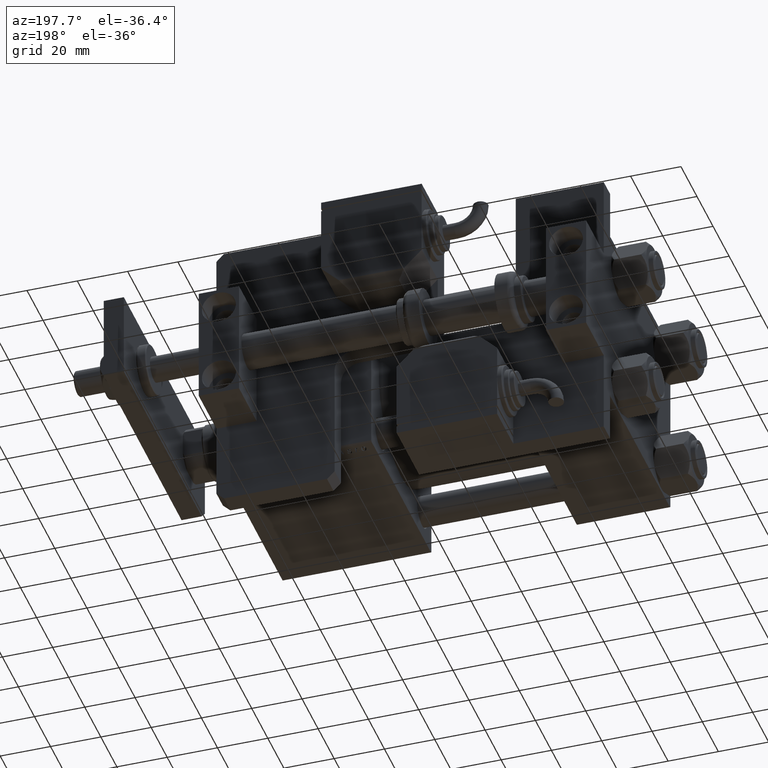
[diagram: clean part render]
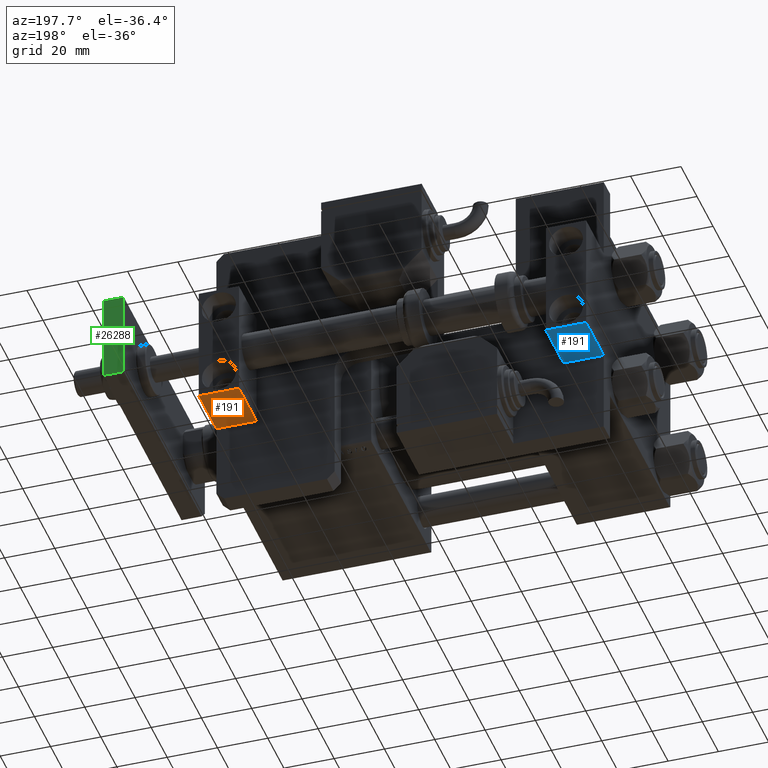
[diagram: same view with three faces highlighted in distinct colors, each labeled with its STEP entity id]
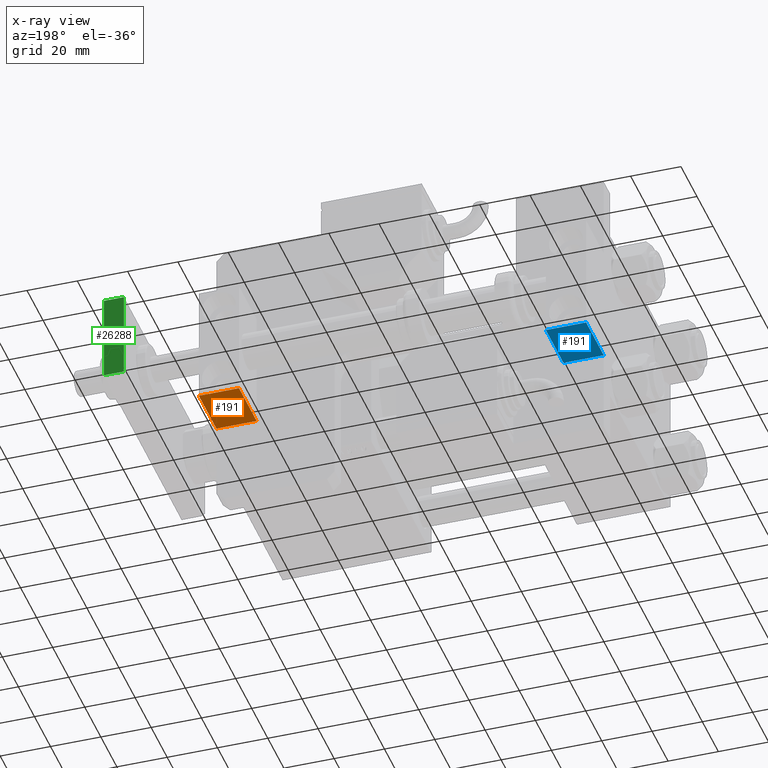
[diagram: x-ray of the same camera — body ghosted, the three highlighted faces saturated]
A machine part, auxiliary view with three faces highlighted in distinct colors.
The next image is the same camera in x-ray (body ghosted, the three faces saturated) — at least one of them is partly hidden behind the body in this view.
Their STEP definitions:

[orange] entity #191 — the highlighted planar face has unit normal (-0, 0, -1).
#191 = ADVANCED_FACE ( 'NONE', ( #32883 ), #40802, .T. ) ;
#1950 = LINE ( 'NONE', #15247, #36551 ) ;
#2941 = CARTESIAN_POINT ( 'NONE',  ( 23.99999999999999645, 10.99999999999999289, -16.00000000000000000 ) ) ;
#3728 = DIRECTION ( 'NONE',  ( -1.577021341797098053E-16, 1.000000000000000000, -0.000000000000000000 ) ) ;
#4454 = VECTOR ( 'NONE', #34335, 1000.000000000000000 ) ;
#6862 = DIRECTION ( 'NONE',  ( 1.000000000000000000, 1.577021341797098053E-16, -0.000000000000000000 ) ) ;
#7480 = LINE ( 'NONE', #2941, #4454 ) ;
#10231 = DIRECTION ( 'NONE',  ( 0.000000000000000000, 0.000000000000000000, 1.000000000000000000 ) ) ;
#14567 = EDGE_CURVE ( 'NONE', #14608, #40567, #7480, .T. ) ;
#14608 = VERTEX_POINT ( 'NONE', #47026 ) ;
#15247 = CARTESIAN_POINT ( 'NONE',  ( 23.99999999999999645, 10.99999999999999289, -16.00000000000000000 ) ) ;
#15258 = ORIENTED_EDGE ( 'NONE', *, *, #46166, .F. ) ;
#15304 = LINE ( 'NONE', #24093, #24749 ) ;
#16017 = ORIENTED_EDGE ( 'NONE', *, *, #23519, .F. ) ;
#18371 = ORIENTED_EDGE ( 'NONE', *, *, #42146, .T. ) ;
#19800 = CARTESIAN_POINT ( 'NONE',  ( 24.00000000000000000, -11.00000000000000000, 0.000000000000000000 ) ) ;
#20015 = ORIENTED_EDGE ( 'NONE', *, *, #14567, .T. ) ;
#21990 = CARTESIAN_POINT ( 'NONE',  ( 23.99999999999999645, 10.99999999999999289, 0.000000000000000000 ) ) ;
#23519 = EDGE_CURVE ( 'NONE', #48045, #33339, #15304, .T. ) ;
#24093 = CARTESIAN_POINT ( 'NONE',  ( 24.00000000000000000, -11.00000000000000000, -16.00000000000000000 ) ) ;
#24184 = AXIS2_PLACEMENT_3D ( 'NONE', #28099, #6862, #45303 ) ;
#24749 = VECTOR ( 'NONE', #10231, 1000.000000000000000 ) ;
#28099 = CARTESIAN_POINT ( 'NONE',  ( 23.99999999999999645, 10.99999999999999289, -16.00000000000000000 ) ) ;
#32883 = FACE_OUTER_BOUND ( 'NONE', #46811, .T. ) ;
#33339 = VERTEX_POINT ( 'NONE', #19800 ) ;
#33445 = CARTESIAN_POINT ( 'NONE',  ( 23.99999999999999645, 10.99999999999999289, 0.000000000000000000 ) ) ;
#34004 = VECTOR ( 'NONE', #3728, 1000.000000000000000 ) ;
#34335 = DIRECTION ( 'NONE',  ( 0.000000000000000000, 0.000000000000000000, 1.000000000000000000 ) ) ;
#36551 = VECTOR ( 'NONE', #36746, 1000.000000000000000 ) ;
#36746 = DIRECTION ( 'NONE',  ( -1.577021341797098053E-16, 1.000000000000000000, -0.000000000000000000 ) ) ;
#37957 = LINE ( 'NONE', #33445, #34004 ) ;
#40567 = VERTEX_POINT ( 'NONE', #21990 ) ;
#40802 = PLANE ( 'NONE',  #24184 ) ;
#42146 = EDGE_CURVE ( 'NONE', #48045, #14608, #1950, .T. ) ;
#45303 = DIRECTION ( 'NONE',  ( -1.577021341797098053E-16, 1.000000000000000000, 0.000000000000000000 ) ) ;
#46166 = EDGE_CURVE ( 'NONE', #33339, #40567, #37957, .T. ) ;
#46811 = EDGE_LOOP ( 'NONE', ( #15258, #16017, #18371, #20015 ) ) ;
#47026 = CARTESIAN_POINT ( 'NONE',  ( 23.99999999999999645, 10.99999999999999289, -16.00000000000000000 ) ) ;
#47684 = CARTESIAN_POINT ( 'NONE',  ( 24.00000000000000000, -11.00000000000000000, -16.00000000000000000 ) ) ;
#48045 = VERTEX_POINT ( 'NONE', #47684 ) ;

[blue] entity #191 — the highlighted planar face has unit normal (-0, 0, -1).
#191 = ADVANCED_FACE ( 'NONE', ( #32883 ), #40802, .T. ) ;
#1950 = LINE ( 'NONE', #15247, #36551 ) ;
#2941 = CARTESIAN_POINT ( 'NONE',  ( 23.99999999999999645, 10.99999999999999289, -16.00000000000000000 ) ) ;
#3728 = DIRECTION ( 'NONE',  ( -1.577021341797098053E-16, 1.000000000000000000, -0.000000000000000000 ) ) ;
#4454 = VECTOR ( 'NONE', #34335, 1000.000000000000000 ) ;
#6862 = DIRECTION ( 'NONE',  ( 1.000000000000000000, 1.577021341797098053E-16, -0.000000000000000000 ) ) ;
#7480 = LINE ( 'NONE', #2941, #4454 ) ;
#10231 = DIRECTION ( 'NONE',  ( 0.000000000000000000, 0.000000000000000000, 1.000000000000000000 ) ) ;
#14567 = EDGE_CURVE ( 'NONE', #14608, #40567, #7480, .T. ) ;
#14608 = VERTEX_POINT ( 'NONE', #47026 ) ;
#15247 = CARTESIAN_POINT ( 'NONE',  ( 23.99999999999999645, 10.99999999999999289, -16.00000000000000000 ) ) ;
#15258 = ORIENTED_EDGE ( 'NONE', *, *, #46166, .F. ) ;
#15304 = LINE ( 'NONE', #24093, #24749 ) ;
#16017 = ORIENTED_EDGE ( 'NONE', *, *, #23519, .F. ) ;
#18371 = ORIENTED_EDGE ( 'NONE', *, *, #42146, .T. ) ;
#19800 = CARTESIAN_POINT ( 'NONE',  ( 24.00000000000000000, -11.00000000000000000, 0.000000000000000000 ) ) ;
#20015 = ORIENTED_EDGE ( 'NONE', *, *, #14567, .T. ) ;
#21990 = CARTESIAN_POINT ( 'NONE',  ( 23.99999999999999645, 10.99999999999999289, 0.000000000000000000 ) ) ;
#23519 = EDGE_CURVE ( 'NONE', #48045, #33339, #15304, .T. ) ;
#24093 = CARTESIAN_POINT ( 'NONE',  ( 24.00000000000000000, -11.00000000000000000, -16.00000000000000000 ) ) ;
#24184 = AXIS2_PLACEMENT_3D ( 'NONE', #28099, #6862, #45303 ) ;
#24749 = VECTOR ( 'NONE', #10231, 1000.000000000000000 ) ;
#28099 = CARTESIAN_POINT ( 'NONE',  ( 23.99999999999999645, 10.99999999999999289, -16.00000000000000000 ) ) ;
#32883 = FACE_OUTER_BOUND ( 'NONE', #46811, .T. ) ;
#33339 = VERTEX_POINT ( 'NONE', #19800 ) ;
#33445 = CARTESIAN_POINT ( 'NONE',  ( 23.99999999999999645, 10.99999999999999289, 0.000000000000000000 ) ) ;
#34004 = VECTOR ( 'NONE', #3728, 1000.000000000000000 ) ;
#34335 = DIRECTION ( 'NONE',  ( 0.000000000000000000, 0.000000000000000000, 1.000000000000000000 ) ) ;
#36551 = VECTOR ( 'NONE', #36746, 1000.000000000000000 ) ;
#36746 = DIRECTION ( 'NONE',  ( -1.577021341797098053E-16, 1.000000000000000000, -0.000000000000000000 ) ) ;
#37957 = LINE ( 'NONE', #33445, #34004 ) ;
#40567 = VERTEX_POINT ( 'NONE', #21990 ) ;
#40802 = PLANE ( 'NONE',  #24184 ) ;
#42146 = EDGE_CURVE ( 'NONE', #48045, #14608, #1950, .T. ) ;
#45303 = DIRECTION ( 'NONE',  ( -1.577021341797098053E-16, 1.000000000000000000, 0.000000000000000000 ) ) ;
#46166 = EDGE_CURVE ( 'NONE', #33339, #40567, #37957, .T. ) ;
#46811 = EDGE_LOOP ( 'NONE', ( #15258, #16017, #18371, #20015 ) ) ;
#47026 = CARTESIAN_POINT ( 'NONE',  ( 23.99999999999999645, 10.99999999999999289, -16.00000000000000000 ) ) ;
#47684 = CARTESIAN_POINT ( 'NONE',  ( 24.00000000000000000, -11.00000000000000000, -16.00000000000000000 ) ) ;
#48045 = VERTEX_POINT ( 'NONE', #47684 ) ;

[green] entity #26288 — the highlighted planar face has unit normal (0, -1, -0).
#2252 = LINE ( 'NONE', #11027, #3560 ) ;
#3560 = VECTOR ( 'NONE', #19523, 1000.000000000000000 ) ;
#7509 = ORIENTED_EDGE ( 'NONE', *, *, #13084, .F. ) ;
#8261 = EDGE_CURVE ( 'NONE', #47397, #29482, #2252, .T. ) ;
#9163 = PLANE ( 'NONE',  #39077 ) ;
#9445 = DIRECTION ( 'NONE',  ( 0.000000000000000000, -1.000000000000000000, 0.000000000000000000 ) ) ;
#11027 = CARTESIAN_POINT ( 'NONE',  ( 17.50000000000000000, 101.0000000000000000, 8.000000000000000000 ) ) ;
#13039 = EDGE_CURVE ( 'NONE', #29482, #15879, #49662, .T. ) ;
#13084 = EDGE_CURVE ( 'NONE', #39381, #15879, #15753, .T. ) ;
#14781 = DIRECTION ( 'NONE',  ( -1.000000000000000000, 0.000000000000000000, 0.000000000000000000 ) ) ;
#15753 = LINE ( 'NONE', #50223, #45007 ) ;
#15879 = VERTEX_POINT ( 'NONE', #44668 ) ;
#19523 = DIRECTION ( 'NONE',  ( -0.000000000000000000, -0.000000000000000000, -1.000000000000000000 ) ) ;
#19715 = CARTESIAN_POINT ( 'NONE',  ( 17.50000000000000000, 101.0000000000000000, 0.000000000000000000 ) ) ;
#22603 = CARTESIAN_POINT ( 'NONE',  ( -17.50000000000000355, 101.0000000000000000, 8.000000000000000000 ) ) ;
#24815 = DIRECTION ( 'NONE',  ( -0.000000000000000000, -0.000000000000000000, -1.000000000000000000 ) ) ;
#26288 = ADVANCED_FACE ( 'NONE', ( #40540 ), #9163, .F. ) ;
#26716 = DIRECTION ( 'NONE',  ( 0.000000000000000000, -0.000000000000000000, -1.000000000000000000 ) ) ;
#28417 = CARTESIAN_POINT ( 'NONE',  ( 17.50000000000000000, 101.0000000000000000, 0.000000000000000000 ) ) ;
#29482 = VERTEX_POINT ( 'NONE', #28417 ) ;
#29699 = VECTOR ( 'NONE', #14781, 1000.000000000000000 ) ;
#30948 = CARTESIAN_POINT ( 'NONE',  ( 17.50000000000000000, 101.0000000000000000, 8.000000000000000000 ) ) ;
#32880 = CARTESIAN_POINT ( 'NONE',  ( 17.50000000000000000, 101.0000000000000000, 8.000000000000000000 ) ) ;
#39077 = AXIS2_PLACEMENT_3D ( 'NONE', #30948, #9445, #26716 ) ;
#39381 = VERTEX_POINT ( 'NONE', #22603 ) ;
#40474 = CARTESIAN_POINT ( 'NONE',  ( 17.50000000000000000, 101.0000000000000000, 8.000000000000000000 ) ) ;
#40540 = FACE_OUTER_BOUND ( 'NONE', #42598, .T. ) ;
#42598 = EDGE_LOOP ( 'NONE', ( #47908, #7509, #43995, #51924 ) ) ;
#43995 = ORIENTED_EDGE ( 'NONE', *, *, #50318, .F. ) ;
#44668 = CARTESIAN_POINT ( 'NONE',  ( -17.50000000000000355, 101.0000000000000000, 0.000000000000000000 ) ) ;
#45007 = VECTOR ( 'NONE', #24815, 1000.000000000000000 ) ;
#47397 = VERTEX_POINT ( 'NONE', #40474 ) ;
#47908 = ORIENTED_EDGE ( 'NONE', *, *, #13039, .T. ) ;
#49526 = VECTOR ( 'NONE', #54178, 1000.000000000000000 ) ;
#49662 = LINE ( 'NONE', #19715, #49526 ) ;
#50223 = CARTESIAN_POINT ( 'NONE',  ( -17.50000000000000355, 101.0000000000000000, 8.000000000000000000 ) ) ;
#50318 = EDGE_CURVE ( 'NONE', #47397, #39381, #53501, .T. ) ;
#51924 = ORIENTED_EDGE ( 'NONE', *, *, #8261, .T. ) ;
#53501 = LINE ( 'NONE', #32880, #29699 ) ;
#54178 = DIRECTION ( 'NONE',  ( -1.000000000000000000, 0.000000000000000000, 0.000000000000000000 ) ) ;